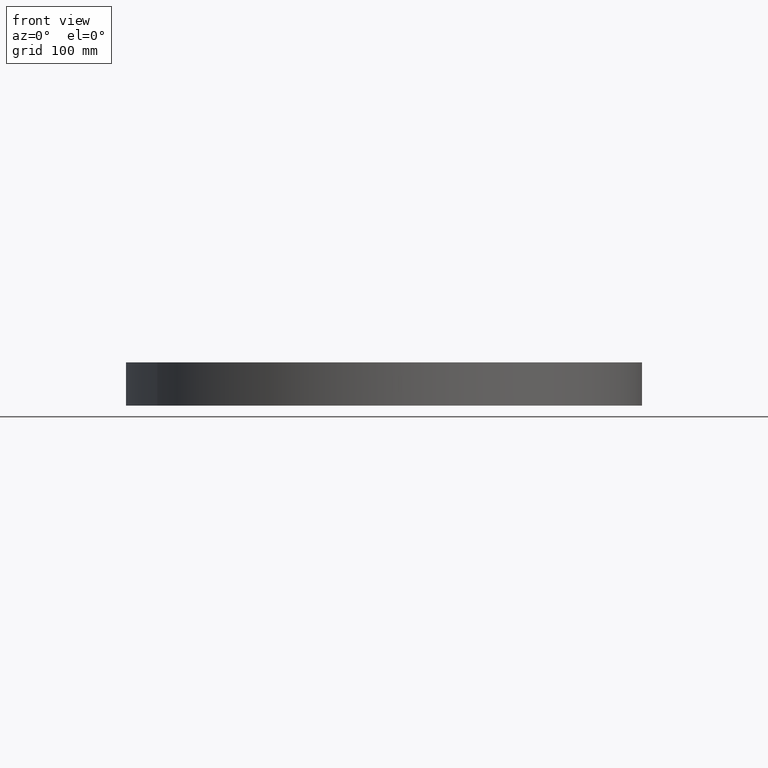
[diagram: clean part render]
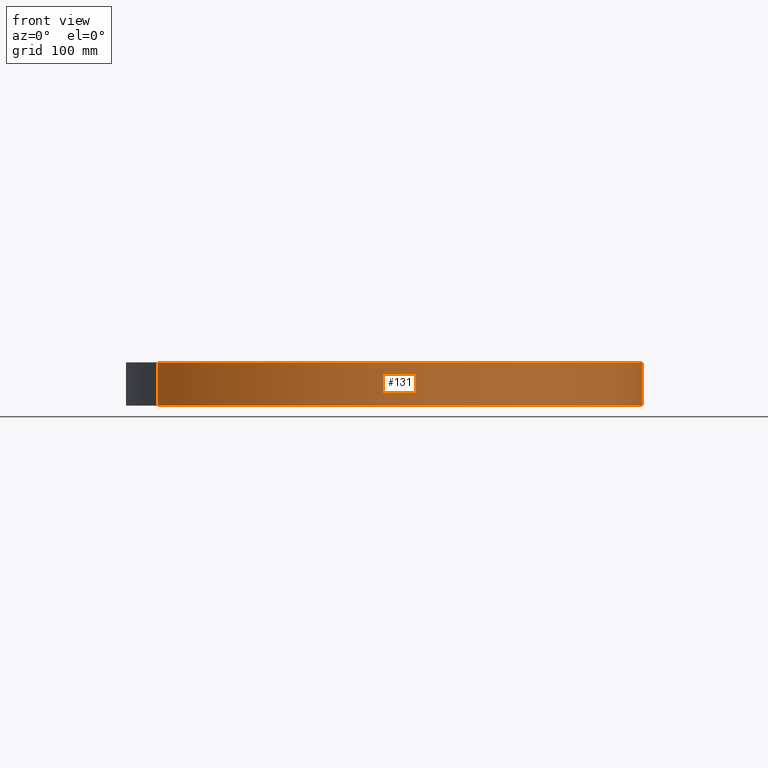
[diagram: same view with one face highlighted and labeled with its STEP entity id]
A machine part, front view. The second image highlights one B-rep face of the part: STEP entity #131.
In plain terms, the highlighted cylindrical surface (partial cylindrical patch) has radius 323.85 mm, axis along (0, 0, 1).
Its self-contained STEP definition (entity closure, byte-faithful):
#95=AXIS2_PLACEMENT_3D('Cylinder Axis2P3D',#92,#93,#94) ;
#108=AXIS2_PLACEMENT_3D('Circle Axis2P3D',#106,#107,$) ;
#122=AXIS2_PLACEMENT_3D('Circle Axis2P3D',#120,#121,$) ;
#92=CARTESIAN_POINT('Axis2P3D Location',(0.,0.,1.07)) ;
#97=CARTESIAN_POINT('Line Origine',(11.1891776641,6.11267561723,1.07)) ;
#101=CARTESIAN_POINT('Vertex',(11.1891776641,6.11267561723,1.39870617276E-016)) ;
#103=CARTESIAN_POINT('Vertex',(11.1891776641,6.11267561723,2.14000000001)) ;
#106=CARTESIAN_POINT('Axis2P3D Location',(0.,0.,2.14000000001)) ;
#110=CARTESIAN_POINT('Vertex',(-11.1891776641,-6.11267561723,2.14000000001)) ;
#113=CARTESIAN_POINT('Line Origine',(-11.1891776641,-6.11267561723,1.07)) ;
#117=CARTESIAN_POINT('Vertex',(-11.1891776641,-6.11267561723,1.39870617276E-016)) ;
#120=CARTESIAN_POINT('Axis2P3D Location',(0.,0.,0.)) ;
#93=DIRECTION('Axis2P3D Direction',(0.,0.,0.0393700787402)) ;
#94=DIRECTION('Axis2P3D XDirection',(0.0345504945626,0.0188750212049,0.)) ;
#98=DIRECTION('Vector Direction',(0.,0.,0.0393700787402)) ;
#107=DIRECTION('Axis2P3D Direction',(0.,0.,0.0393700787402)) ;
#114=DIRECTION('Vector Direction',(0.,0.,0.0393700787402)) ;
#121=DIRECTION('Axis2P3D Direction',(0.,0.,0.0393700787402)) ;
#99=VECTOR('Line Direction',#98,0.0393700787402) ;
#115=VECTOR('Line Direction',#114,0.0393700787402) ;
#126=ORIENTED_EDGE('',*,*,#105,.T.) ;
#127=ORIENTED_EDGE('',*,*,#112,.F.) ;
#128=ORIENTED_EDGE('',*,*,#119,.F.) ;
#129=ORIENTED_EDGE('',*,*,#124,.T.) ;
#131=ADVANCED_FACE('PartBody',(#130),#96,.T.) ;
#109=CIRCLE('generated circle',#108,12.7500000001) ;
#123=CIRCLE('generated circle',#122,12.7500000001) ;
#96=CYLINDRICAL_SURFACE('generated cylinder',#95,12.7500000001) ;
#105=EDGE_CURVE('',#102,#104,#100,.T.) ;
#112=EDGE_CURVE('',#111,#104,#109,.T.) ;
#119=EDGE_CURVE('',#118,#111,#116,.T.) ;
#124=EDGE_CURVE('',#118,#102,#123,.T.) ;
#125=EDGE_LOOP('',(#126,#127,#128,#129)) ;
#130=FACE_OUTER_BOUND('',#125,.T.) ;
#100=LINE('Line',#97,#99) ;
#116=LINE('Line',#113,#115) ;
#102=VERTEX_POINT('',#101) ;
#104=VERTEX_POINT('',#103) ;
#111=VERTEX_POINT('',#110) ;
#118=VERTEX_POINT('',#117) ;